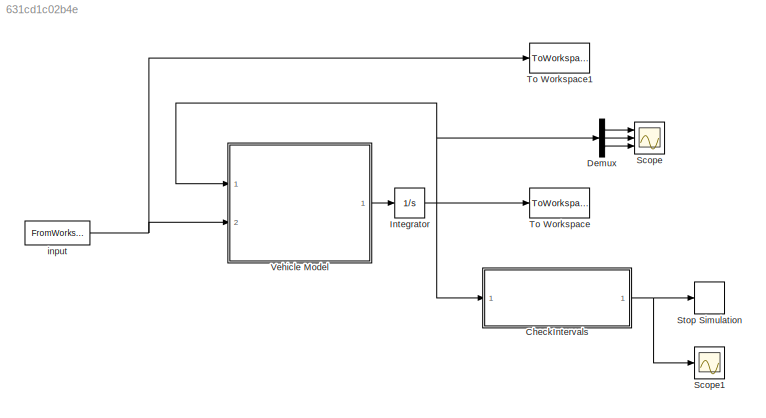
MODEL slx_631cd1c02b4e
KIND model
CONFIG AbsTol = auto
CONFIG EnableMultiTasking = off
CONFIG FixedStep = Ts
CONFIG MaxStep = auto
CONFIG MinStep = auto
CONFIG RelTol = 1e-6
CONFIG SampleTimeConstraint = Unconstrained
CONFIG Solver = FixedStepAuto
CONFIG SolverName = FixedStepAuto
CONFIG StartTime = 0.0
CONFIG StopTime = NsimMax*Ts
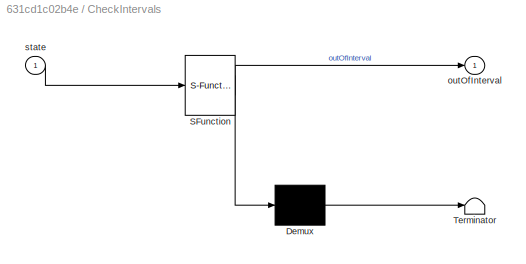
BLOCK [SubSystem] CheckIntervals
  ErrorFcn = Stateflow.Translate.translate
  PermitHierarchicalResolution = ExplicitOnly
  Ports = [1, 1]
  RequestExecContextInheritance = off
  SFBlockType = MATLAB Function
  TreatAsAtomicUnit = on
BLOCK [Demux] CheckIntervals/ Demux 
  Outputs = 1
  Ports = [1, 1]
BLOCK [S-Function] CheckIntervals/ SFunction 
  EnableBusSupport = on
  FunctionName = sf_sfun
  PortCounts = [1 2]
  Ports = [1, 2]
  SFcnIsStateOwnerBlock = off
  SFunctionDeploymentMode = off
  Tag = Stateflow S-Function VehicleSimulationErrorTest 1
BLOCK [Terminator] CheckIntervals/ Terminator 
BLOCK [Outport] CheckIntervals/outOfInterval
  IconDisplay = Port number
BLOCK [Inport] CheckIntervals/state
  IconDisplay = Port number
BLOCK [Demux] Demux
  DisplayOption = bar
  Outputs = 3
  Ports = [1, 3]
BLOCK [Integrator] Integrator
  InitialCondition = state0
  Ports = [1, 1]
BLOCK [Scope] Scope
  Floating = off
  NumInputPorts = 3
  Ports = [3]
  ScopeSpecificationString = Simulink.scopes.TimeScopeBlockCfg('CurrentConfiguration', extmgr.ConfigurationSet(extmgr.Configuration('Core','General UI',true),extmgr.Configuration('Core','Source UI',true),extmgr.Configuration('Sources','WiredSimulink',true),extmgr.Configuration('Visuals','Time Domain',true,'SerializedDisplays',{struct('MinYLimReal','7.81686','MaxYLimReal','10.97592','YLabelReal','','MinYLimMag','7.81686','MaxY...<+2782ch>
BLOCK [Scope] Scope1
  Floating = off
  NumInputPorts = 1
  Ports = [1]
  ScopeSpecificationString = Simulink.scopes.TimeScopeBlockCfg('CurrentConfiguration', extmgr.ConfigurationSet(extmgr.Configuration('Core','General UI',true),extmgr.Configuration('Core','Source UI',true),extmgr.Configuration('Sources','WiredSimulink',true,'DataLoggingVariableName','ScopeData1'),extmgr.Configuration('Visuals','Time Domain',true,'SerializedDisplays',{struct('MinYLimReal','-0.125','MaxYLimReal','1.125','YLabelRe...<+1361ch>
BLOCK [Stop] Stop Simulation
BLOCK [ToWorkspace] To Workspace
  FixptAsFi = on
  MaxDataPoints = inf
  Ports = [1]
  SampleTime = Ts
  Save2DSignal = 3-D array (concatenate along third dimension)
  VariableName = X
BLOCK [ToWorkspace] To Workspace1
  FixptAsFi = on
  MaxDataPoints = inf
  Ports = [1]
  SampleTime = Ts
  Save2DSignal = 3-D array (concatenate along third dimension)
  VariableName = U
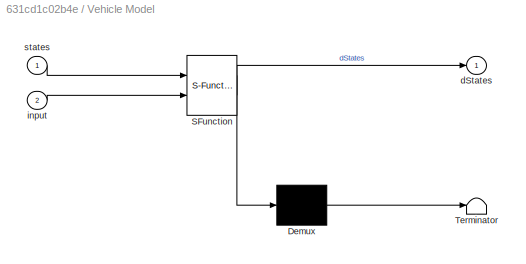
BLOCK [SubSystem] Vehicle Model
  ErrorFcn = Stateflow.Translate.translate
  PermitHierarchicalResolution = ExplicitOnly
  Ports = [2, 1]
  RequestExecContextInheritance = off
  SFBlockType = MATLAB Function
  TreatAsAtomicUnit = on
BLOCK [Demux] Vehicle Model/ Demux 
  Outputs = 1
  Ports = [1, 1]
BLOCK [S-Function] Vehicle Model/ SFunction 
  EnableBusSupport = on
  FunctionName = sf_sfun
  PortCounts = [2 2]
  Ports = [2, 2]
  SFcnIsStateOwnerBlock = off
  SFunctionDeploymentMode = off
  Tag = Stateflow S-Function VehicleSimulationErrorTest 2
BLOCK [Terminator] Vehicle Model/ Terminator 
BLOCK [Outport] Vehicle Model/dStates
  IconDisplay = Port number
BLOCK [Inport] Vehicle Model/input
  IconDisplay = Port number
  Port = 2
BLOCK [Inport] Vehicle Model/states
  IconDisplay = Port number
BLOCK [FromWorkspace] input
  SampleTime = Ts
  VariableName = input
  ZeroCross = on
NET CheckIntervals:1 -> Scope1:1, Stop Simulation:1
LINE Demux:1 -> Scope:1
LINE Demux:2 -> Scope:2
LINE Demux:3 -> Scope:3
NET Integrator:1 -> CheckIntervals:1, Demux:1, To Workspace:1, Vehicle Model:1
LINE Vehicle Model:1 -> Integrator:1
NET input:1 -> To Workspace1:1, Vehicle Model:2
note: NET lines group one-source signal fan-out (src -> all destinations, sorted); 1:1 wires keep LINE
CHART CheckIntervals states=1 transitions=1
  STATE_LABEL 'eML_blk_kernel()'
  STATE_LABEL 'SCRIPT:\nfunction outOfInterval = CheckIntervals(state)\n\nvx = state(1);\nvy = state(2);\nomega = state(3);\n\ninVx = vx >= 10 && vx <= 50;\ninVy = vy >= -30 && vy <= 30;\ninOmega = omega >= -10 && omega <= 10;\n\noutOfInterval = ~(inVx && inVy && inOmega);\n\n\n'
CHART Vehicle Model states=1 transitions=1
  STATE_LABEL 'eML_blk_kernel()'
  STATE_LABEL 'SCRIPT:\nfunction dStates = VehicleModel(states, input)\n% VEHICLE MODEL \n%   The function accepts current system states and inputs, and calculates \n%   state derivatives.\n\n% State definition\nvx = states(1);\nvy = states(2);\nomega = states(3);\n\n% Input definition\nFxfl = input(1);\nFyfl = input(2);\nFxfr = input(3);\nFyfr = input(4);\nFxrl = input(5);\nFxrr = input(6);\n\n% Initialize vehicle parameters\nvehi...<+1044ch>'
